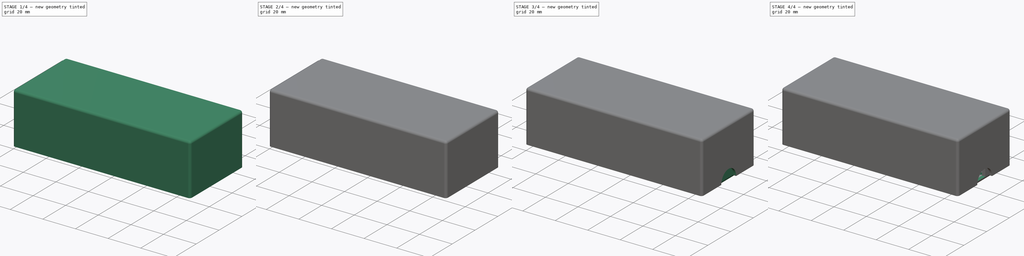
[diagram: build sequence overview — one tinted view per stage of 4, left to right]
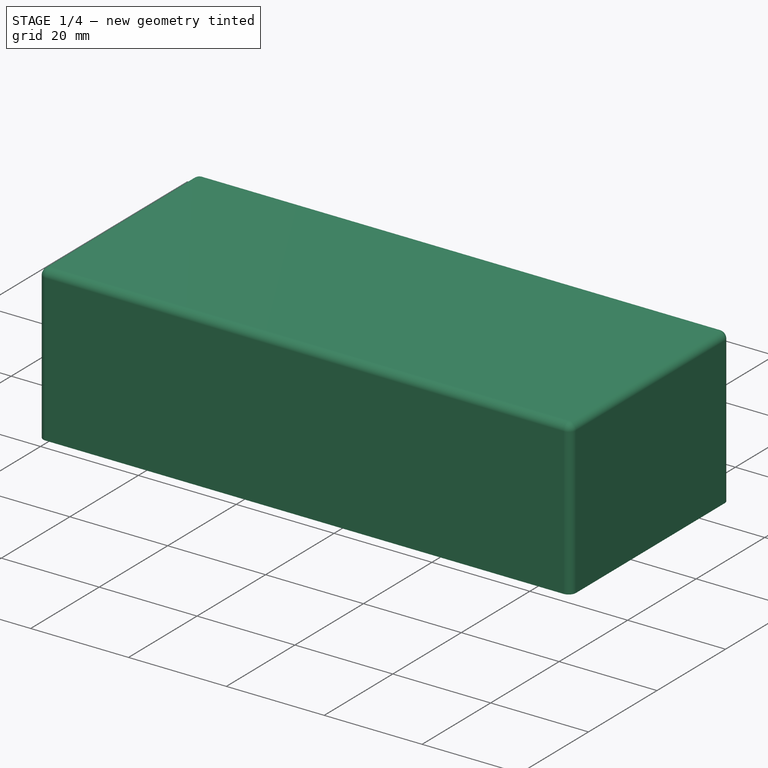
[diagram: stage 1 of 4 — iso view after this stage's code; geometry added in this stage tinted green]
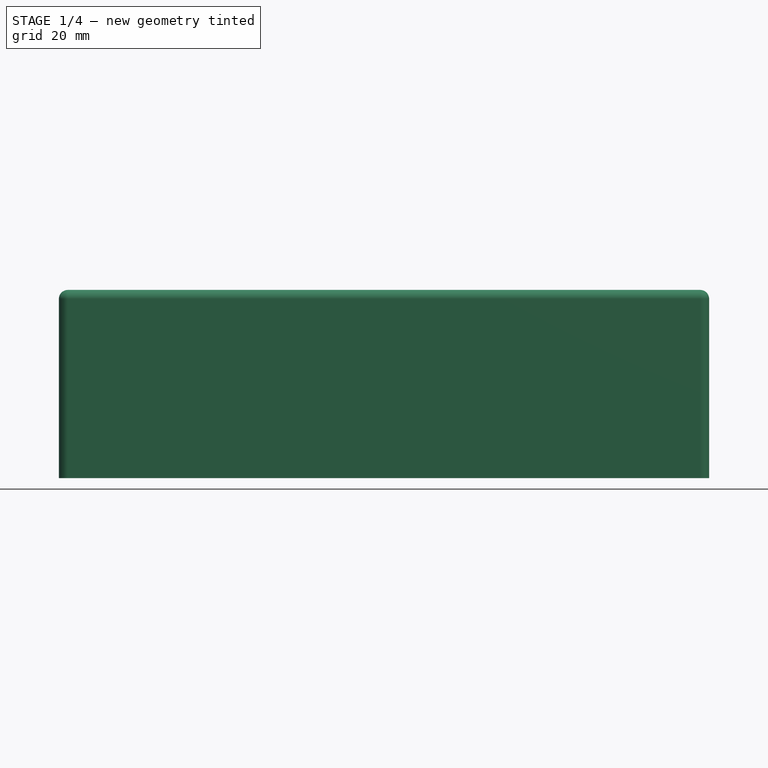
[diagram: stage 1 of 4 — front view after this stage's code; geometry added in this stage tinted green]
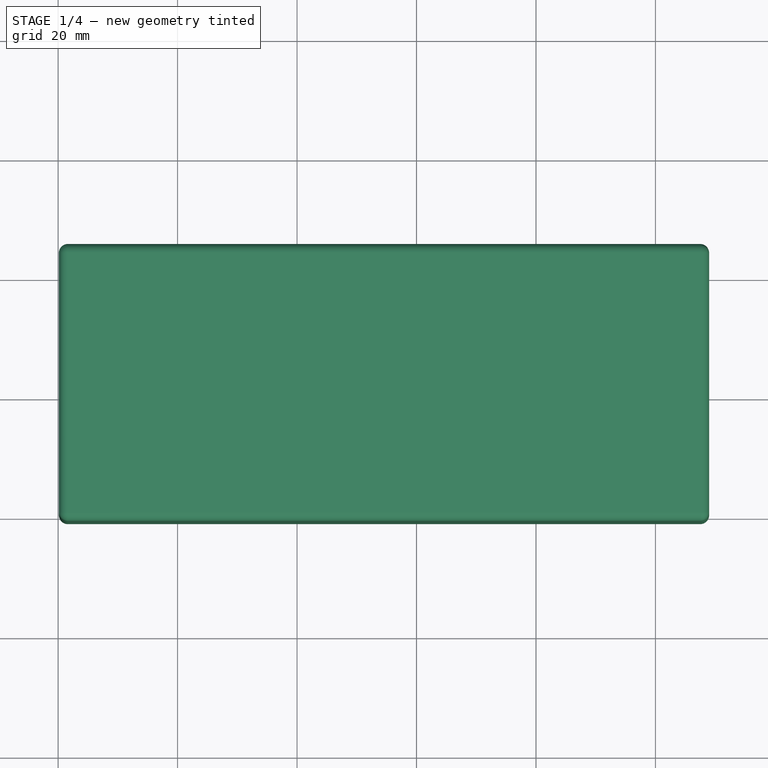
[diagram: stage 1 of 4 — top view after this stage's code; geometry added in this stage tinted green]
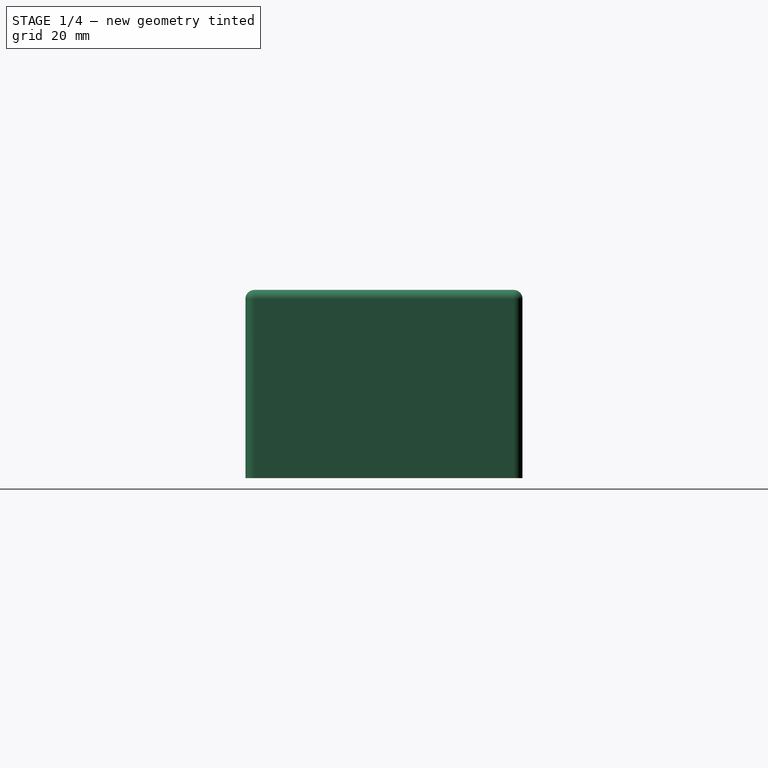
[diagram: stage 1 of 4 — right view after this stage's code; geometry added in this stage tinted green]
FCSTD DOCUMENT  (FreeCAD 0.21R33771 (Git))
Label: enclosure
License: All rights reserved
LicenseURL: http://en.wikipedia.org/wiki/All_rights_reserved
objects: Sketcher::SketchObject×7, PartDesign::Pad×4, PartDesign::Pocket×3, PartDesign::Thickness×2, PartDesign::Body×2, App::Part×1
note: 27 computed .brp shape members not serialized (recipe doc carries the construction recipe); baked Part::Feature solids carry a one-line shape summary decoded from their .brp

FEATURE [PartDesign::Body] Body
  Group = -> [Sketch,Pad,Thickness,Sketch001,Pocket,Sketch002,Pocket001]
  Origin = -> Origin
  Tip = -> Pocket001
FEATURE [App::Part] Part
  Origin = -> Origin001
FEATURE [Sketcher::SketchObject] Sketch003
  FullyConstrained = true
  MapMode = 5
  Support = -> [XY_Plane002]
  sketch-geometry (4):
    g0: LineSegment StartX=-58.3724 StartY=24.0452 StartZ=0 EndX=47.4842 EndY=24.0452 EndZ=0
    g1: LineSegment StartX=47.4842 StartY=24.0452 StartZ=0 EndX=47.4842 EndY=-19.3437 EndZ=0
    g2: LineSegment StartX=47.4842 StartY=-19.3437 StartZ=0 EndX=-58.3724 EndY=-19.3437 EndZ=0
    g3: LineSegment StartX=-58.3724 StartY=-19.3437 StartZ=0 EndX=-58.3724 EndY=24.0452 EndZ=0
  constraints (12):
    c: Coincident(g0,g1)
    c: Coincident(g1,g2)
    c: Coincident(g2,g3)
    c: Coincident(g3,g0)
    c: Horizontal(g0)
    c: Horizontal(g2)
    c: Vertical(g1)
    c: Vertical(g3)
    c: DistanceX(g0) = 47.4842
    c: DistanceY(g0) = 24.0452
    c: DistanceX(g2) = -58.3724
    c: DistanceY(g2) = -19.3437
FEATURE [PartDesign::Pad] Pad001
  Direction = (0,0,1)
  Length = 30
  Length2 = 10
  Profile = -> Sketch003
  ReferenceAxis = -> Sketch003 [N_Axis]
  Refine = true
  Type = 0
FEATURE [PartDesign::Thickness] Thickness001
  Base = -> Pad001 [Face5]
  BaseFeature = -> Pad001
  Intersection = false
  Join = 0
  Mode = 0
  Refine = true
  SupportTransform = false
  Value = 1.5
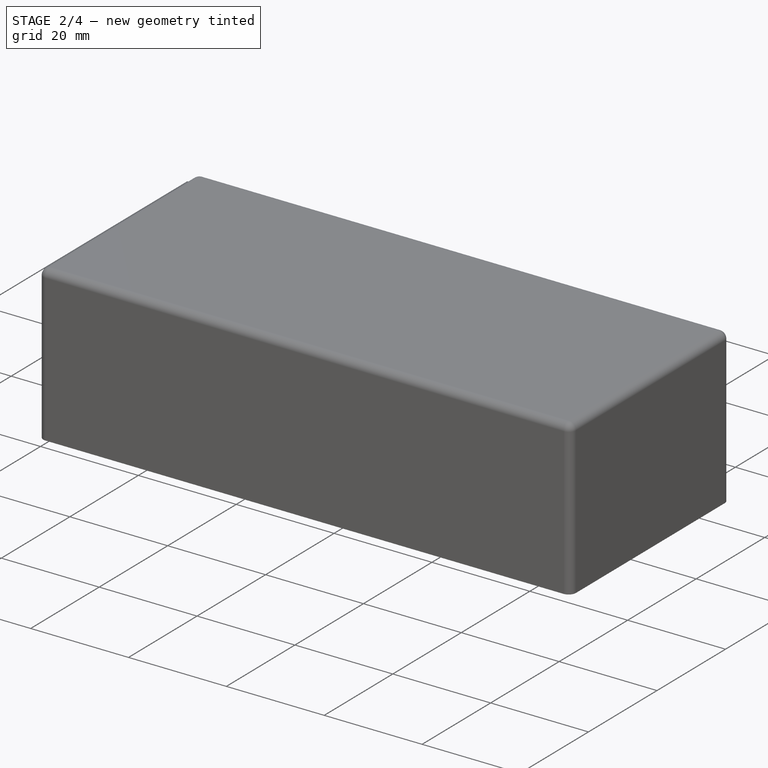
[diagram: stage 2 of 4 — iso view after this stage's code; geometry added in this stage tinted green]
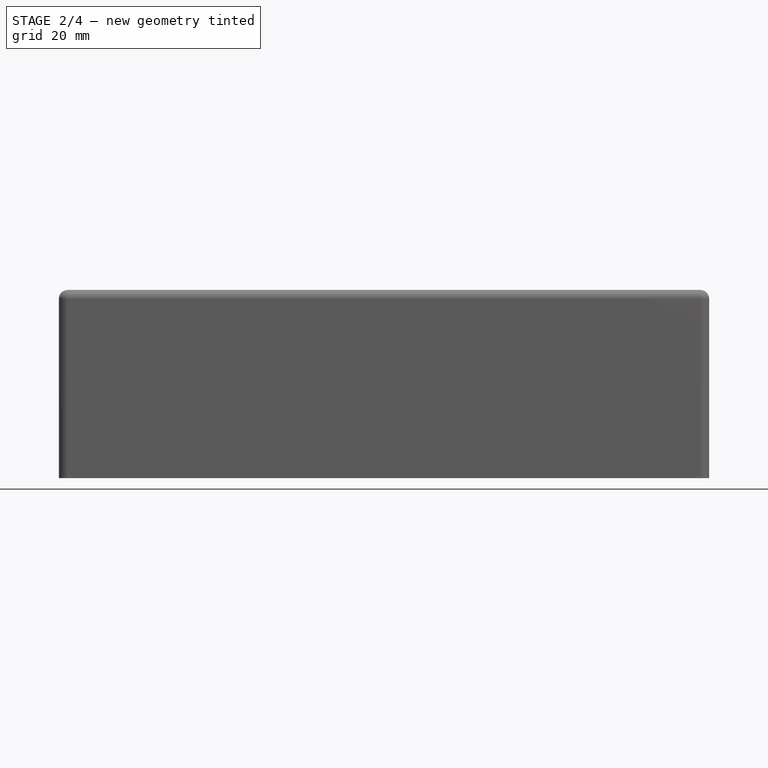
[diagram: stage 2 of 4 — front view after this stage's code; geometry added in this stage tinted green]
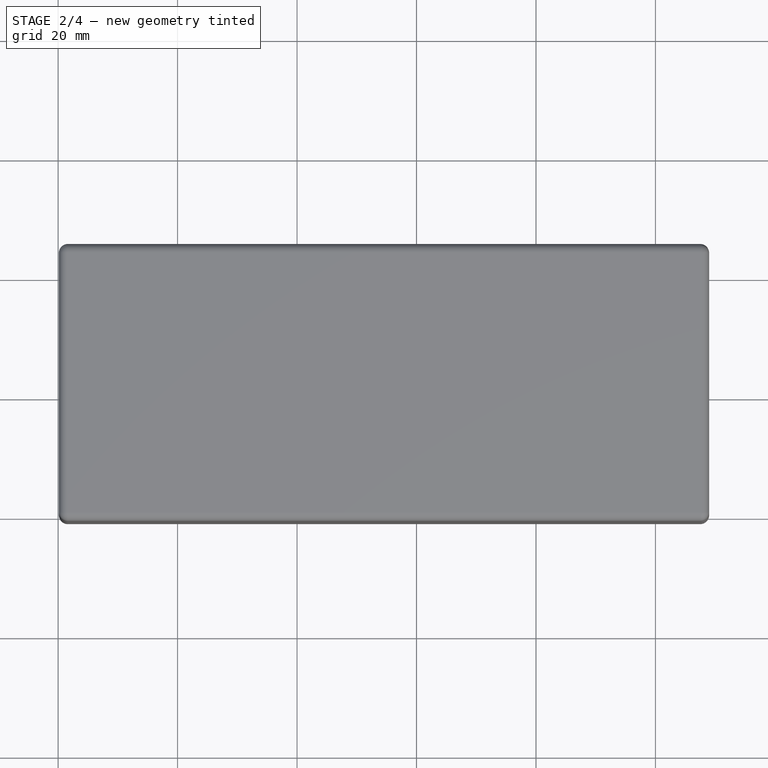
[diagram: stage 2 of 4 — top view after this stage's code; geometry added in this stage tinted green]
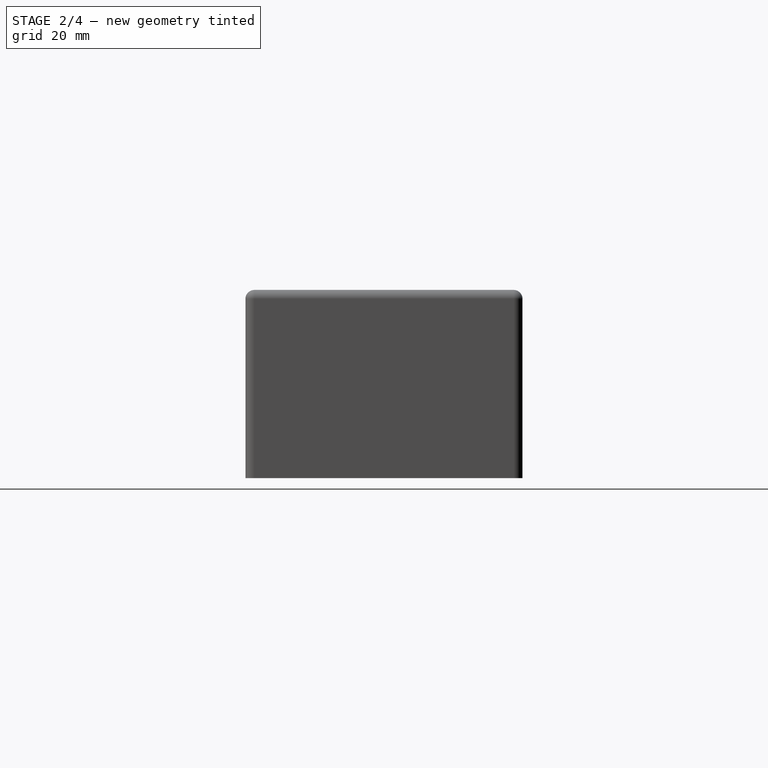
[diagram: stage 2 of 4 — right view after this stage's code; geometry added in this stage tinted green]
FEATURE [Sketcher::SketchObject] Sketch004
  FullyConstrained = true
  MapMode = 5
  Support = -> [XY_Plane002]
  sketch-geometry (8):
    g0: LineSegment StartX=-58.9879 StartY=6.40837 StartZ=0 EndX=-55.4879 EndY=6.40837 EndZ=0
    g1: LineSegment StartX=-55.4879 StartY=6.40837 StartZ=0 EndX=-55.4879 EndY=-1.09163 EndZ=0
    g2: LineSegment StartX=-55.4879 StartY=-1.09163 StartZ=0 EndX=-58.9879 EndY=-1.09163 EndZ=0
    g3: LineSegment StartX=-58.9879 StartY=-1.09163 StartZ=0 EndX=-58.9879 EndY=6.40837 EndZ=0
    g4: LineSegment StartX=44.3984 StartY=6.41171 StartZ=0 EndX=47.8984 EndY=6.41171 EndZ=0
    g5: LineSegment StartX=47.8984 StartY=6.41171 StartZ=0 EndX=47.8984 EndY=-1.08829 EndZ=0
    g6: LineSegment StartX=47.8984 StartY=-1.08829 StartZ=0 EndX=44.3984 EndY=-1.08829 EndZ=0
    g7: LineSegment StartX=44.3984 StartY=-1.08829 StartZ=0 EndX=44.3984 EndY=6.41171 EndZ=0
  constraints (24):
    c: Coincident(g0,g1)
    c: Coincident(g1,g2)
    c: Coincident(g2,g3)
    c: Coincident(g3,g0)
    c: Horizontal(g0)
    c: Horizontal(g2)
    c: Vertical(g1)
    c: Vertical(g3)
    c: DistanceY(g3,g3) = 7.5
    c: Coincident(g4,g5)
    c: Coincident(g5,g6)
    c: Coincident(g6,g7)
    c: Coincident(g7,g4)
    c: Horizontal(g4)
    c: Horizontal(g6)
    c: Vertical(g5)
    c: Vertical(g7)
    c: DistanceY(g5,g5) = 7.5
    c: DistanceX(g4) = 44.3984
    c: DistanceY(g4) = 6.41171
    c: DistanceX(g6,g6) = 3.5
    c: DistanceX(g2,g2) = 3.5
    c: DistanceX(g2) = -58.9879
    c: DistanceY(g2) = -1.09163
FEATURE [PartDesign::Pad] Pad002
  BaseFeature = -> Thickness001
  Direction = (0,0,1)
  Length = 30
  Length2 = 10
  Profile = -> Sketch004
  ReferenceAxis = -> Sketch004 [N_Axis]
  Refine = true
  Type = 0
FEATURE [Sketcher::SketchObject] Sketch005
  FullyConstrained = true
  MapMode = 5
  Placement = pos=(0,0,30) rot=(1,0,0;3.14159rad)
  Support = -> [Pad002]
  sketch-geometry (16):
    g0: LineSegment StartX=14.8561 StartY=19.916 StartZ=0 EndX=-30.1439 EndY=19.916 EndZ=0
    g1: LineSegment StartX=-30.1439 StartY=19.916 StartZ=0 EndX=-30.1439 EndY=16.916 EndZ=0
    g2: LineSegment StartX=-30.1439 StartY=16.916 StartZ=0 EndX=14.8561 EndY=16.916 EndZ=0
    g3: LineSegment StartX=14.8561 StartY=16.916 StartZ=0 EndX=14.8561 EndY=19.916 EndZ=0
    g4: LineSegment StartX=-29.0784 StartY=-24.8776 StartZ=0 EndX=15.9216 EndY=-24.8776 EndZ=0
    g5: LineSegment StartX=15.9216 StartY=-24.8776 StartZ=0 EndX=15.9216 EndY=-21.8776 EndZ=0
    g6: LineSegment StartX=15.9216 StartY=-21.8776 StartZ=0 EndX=-29.0784 EndY=-21.8776 EndZ=0
    g7: LineSegment StartX=-29.0784 StartY=-21.8776 StartZ=0 EndX=-29.0784 EndY=-24.8776 EndZ=0
    g8: LineSegment StartX=-59.4548 StartY=7.79679 StartZ=0 EndX=-55.4548 EndY=7.79679 EndZ=0
    g9: LineSegment StartX=-55.4548 StartY=7.79679 StartZ=0 EndX=-55.4548 EndY=-12.2032 EndZ=0
    g10: LineSegment StartX=-55.4548 StartY=-12.2032 StartZ=0 EndX=-59.4548 EndY=-12.2032 EndZ=0
    g11: LineSegment StartX=-59.4548 StartY=-12.2032 StartZ=0 EndX=-59.4548 EndY=7.79679 EndZ=0
    g12: LineSegment StartX=44.1969 StartY=7.43163 StartZ=0 EndX=48.1969 EndY=7.43163 EndZ=0
    g13: LineSegment StartX=48.1969 StartY=7.43163 StartZ=0 EndX=48.1969 EndY=-12.5684 EndZ=0
    g14: LineSegment StartX=48.1969 StartY=-12.5684 StartZ=0 EndX=44.1969 EndY=-12.5684 EndZ=0
    g15: LineSegment StartX=44.1969 StartY=-12.5684 StartZ=0 EndX=44.1969 EndY=7.43163 EndZ=0
  constraints (48):
    c: Coincident(g0,g1)
    c: Coincident(g1,g2)
    c: Coincident(g2,g3)
    c: Coincident(g3,g0)
    c: Horizontal(g0)
    c: Horizontal(g2)
    c: Vertical(g1)
    c: Vertical(g3)
    c: Coincident(g4,g5)
    c: Coincident(g5,g6)
    c: Coincident(g6,g7)
    c: Coincident(g7,g4)
    c: Horizontal(g4)
    c: Horizontal(g6)
    c: Vertical(g5)
    c: Vertical(g7)
    c: DistanceX(g2,g2) = 45
    c: DistanceX(g6,g6) = 45
    c: DistanceY(g1,g1) = 3
    c: DistanceY(g7,g7) = 3
    c: Coincident(g8,g9)
    c: Coincident(g9,g10)
    c: Coincident(g10,g11)
    c: Coincident(g11,g8)
    c: Horizontal(g8)
    c: Horizontal(g10)
    c: Vertical(g9)
    c: Vertical(g11)
    c: Coincident(g12,g13)
    c: Coincident(g13,g14)
    c: Coincident(g14,g15)
    c: Coincident(g15,g12)
    c: Horizontal(g12)
    c: Horizontal(g14)
    c: Vertical(g13)
    c: Vertical(g15)
    c: DistanceX(g12,g12) = 4
    c: DistanceY(g15,g15) = 20
    c: DistanceX(g2) = 14.8561
    c: DistanceY(g2) = 16.916
    c: DistanceX(g14) = 44.1969
    c: DistanceY(g14) = -12.5684
    c: DistanceX(g5) = 15.9216
    c: DistanceY(g5) = -21.8776
    c: DistanceX(g8,g8) = 4
    c: DistanceY(g9,g9) = 20
    c: DistanceX(g9) = -55.4548
    c: DistanceY(g9) = -12.2032
FEATURE [PartDesign::Pad] Pad003
  BaseFeature = -> Pad002
  Direction = (0,0,-1)
  Length = 15
  Length2 = 10
  Profile = -> Sketch005
  ReferenceAxis = -> Sketch005 [N_Axis]
  Refine = true
  Type = 0
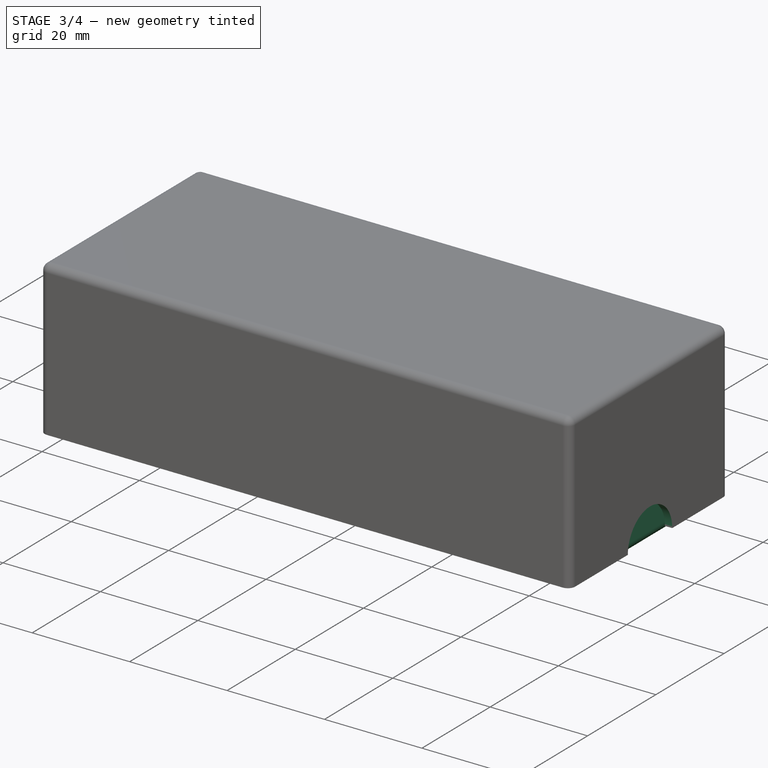
[diagram: stage 3 of 4 — iso view after this stage's code; geometry added in this stage tinted green]
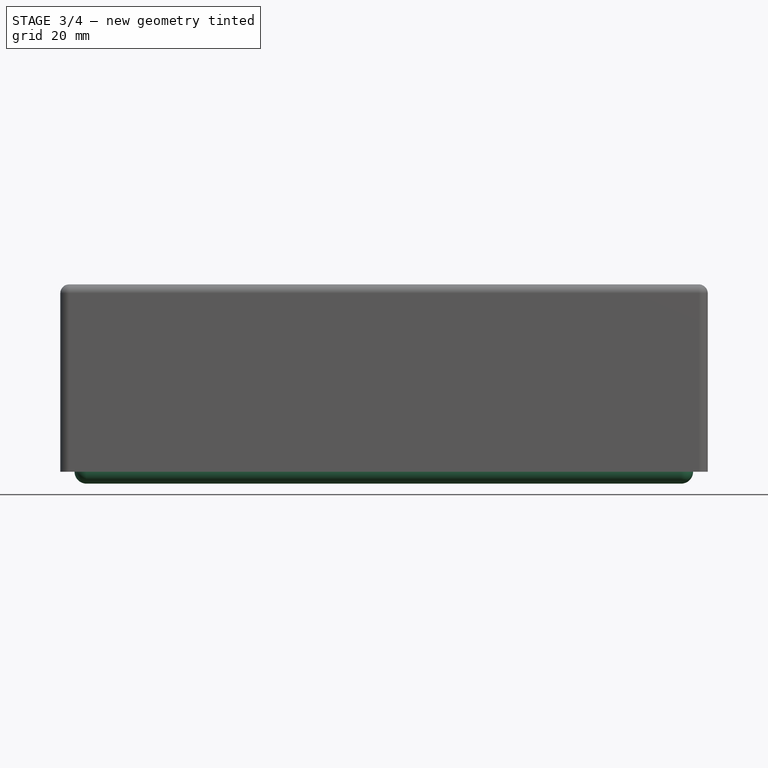
[diagram: stage 3 of 4 — front view after this stage's code; geometry added in this stage tinted green]
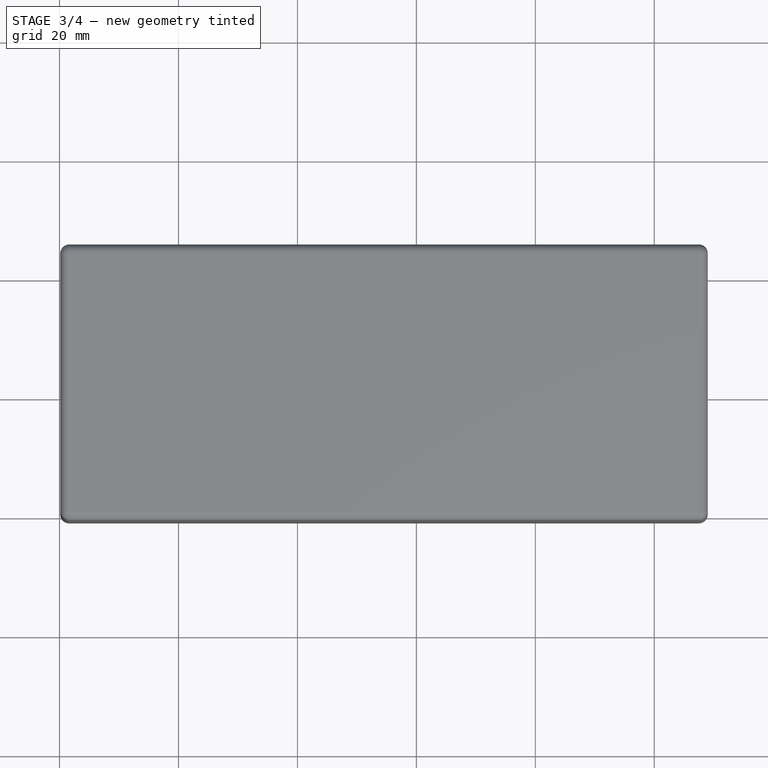
[diagram: stage 3 of 4 — top view after this stage's code; geometry added in this stage tinted green]
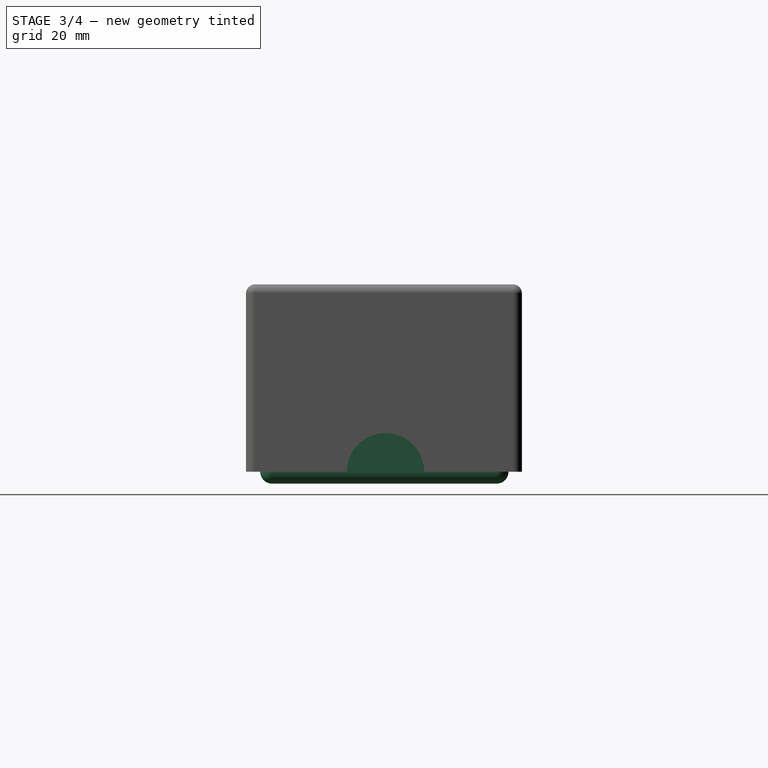
[diagram: stage 3 of 4 — right view after this stage's code; geometry added in this stage tinted green]
FEATURE [Sketcher::SketchObject] Sketch
  FullyConstrained = true
  MapMode = 5
  Support = -> [XY_Plane]
  sketch-geometry (12):
    g0: LineSegment StartX=-52.407 StartY=18.3648 StartZ=0 EndX=-16.407 EndY=18.3648 EndZ=0
    g1: LineSegment StartX=-16.407 StartY=18.3648 StartZ=0 EndX=-16.407 EndY=-13.6352 EndZ=0
    g2: LineSegment StartX=-16.407 StartY=-13.6352 StartZ=0 EndX=-52.407 EndY=-13.6352 EndZ=0
    g3: LineSegment StartX=-52.407 StartY=-13.6352 StartZ=0 EndX=-52.407 EndY=18.3648 EndZ=0
    g4: LineSegment StartX=-7.3284 StartY=12.4323 StartZ=0 EndX=43.6716 EndY=12.4323 EndZ=0
    g5: LineSegment StartX=43.6716 StartY=12.4323 StartZ=0 EndX=43.6716 EndY=-8.56773 EndZ=0
    g6: LineSegment StartX=43.6716 StartY=-8.56773 StartZ=0 EndX=-7.3284 EndY=-8.56773 EndZ=0
    g7: LineSegment StartX=-7.3284 StartY=-8.56773 StartZ=0 EndX=-7.3284 EndY=12.4323 EndZ=0
    g8: LineSegment StartX=-55.4763 StartY=21.2908 StartZ=0 EndX=44.5237 EndY=21.2908 EndZ=0
    g9: LineSegment StartX=44.5237 StartY=21.2908 StartZ=0 EndX=44.5237 EndY=-16.4592 EndZ=0
    g10: LineSegment StartX=44.5237 StartY=-16.4592 StartZ=0 EndX=-55.4763 EndY=-16.4592 EndZ=0
    g11: LineSegment StartX=-55.4763 StartY=-16.4592 StartZ=0 EndX=-55.4763 EndY=21.2908 EndZ=0
  constraints (36):
    c: Coincident(g0,g1)
    c: Coincident(g1,g2)
    c: Coincident(g2,g3)
    c: Coincident(g3,g0)
    c: Horizontal(g0)
    c: Horizontal(g2)
    c: Vertical(g1)
    c: Vertical(g3)
    c: DistanceX(g0,g0) = 36
    c: DistanceY(g1,g1) = 32
    c: Coincident(g4,g5)
    c: Coincident(g5,g6)
    c: Coincident(g6,g7)
    c: Coincident(g7,g4)
    c: Horizontal(g4)
    c: Horizontal(g6)
    c: Vertical(g5)
    c: Vertical(g7)
    c: DistanceY(g5,g5) = 21
    c: DistanceX(g4,g4) = 51
    c: DistanceX(g6) = -7.3284
    c: DistanceY(g6) = -8.56773
    c: DistanceX(g1) = -16.407
    c: DistanceY(g1) = -13.6352
    c: Coincident(g8,g9)
    c: Coincident(g9,g10)
    c: Coincident(g10,g11)
    c: Coincident(g11,g8)
    c: Horizontal(g8)
    c: Horizontal(g10)
    c: Vertical(g9)
    c: Vertical(g11)
    c: DistanceX(g8,g8) = 100
    c: DistanceY(g11,g11) = 37.75
    c: DistanceX(g8) = -55.4763
    c: DistanceY(g8) = 21.2908
FEATURE [PartDesign::Pad] Pad
  Direction = (0,0,1)
  Length = 20
  Length2 = 10
  Profile = -> Sketch
  ReferenceAxis = -> Sketch [N_Axis]
  Refine = true
  Type = 0
FEATURE [PartDesign::Thickness] Thickness
  Base = -> Pad [Face6]
  BaseFeature = -> Pad
  Intersection = false
  Join = 0
  Mode = 0
  Refine = true
  SupportTransform = false
  Value = 2
  expr: Value = 2
FEATURE [Sketcher::SketchObject] Sketch006
  FullyConstrained = true
  MapMode = 5
  Placement = pos=(-59.8724,0,0) rot=(0.57735,-0.57735,-0.57735;2.0944rad)
  Support = -> [Pad003]
  sketch-geometry (1):
    g0: Circle CenterX=-2.6 CenterY=0 CenterZ=0 NormalX=0 NormalY=0 NormalZ=1 AngleXU=0 Radius=6.5
  constraints (3):
    c: PointOnObject(g0,g-1)
    c: Diameter(g0) = 13
    c: DistanceX(g0,g-1) = 2.6
FEATURE [PartDesign::Pocket] Pocket002
  BaseFeature = -> Pad003
  Direction = (1,0,0)
  Length = 200
  Length2 = 5
  Profile = -> Sketch006
  ReferenceAxis = -> Sketch006 [N_Axis]
  Refine = true
  Type = 0
FEATURE [PartDesign::Body] Body001  label="lid"
  Group = -> [Sketch003,Pad001,Thickness001,Sketch004,Pad002,Sketch005,Pad003,Sketch006,Pocket002]
  Origin = -> Origin002
  Tip = -> Pocket002
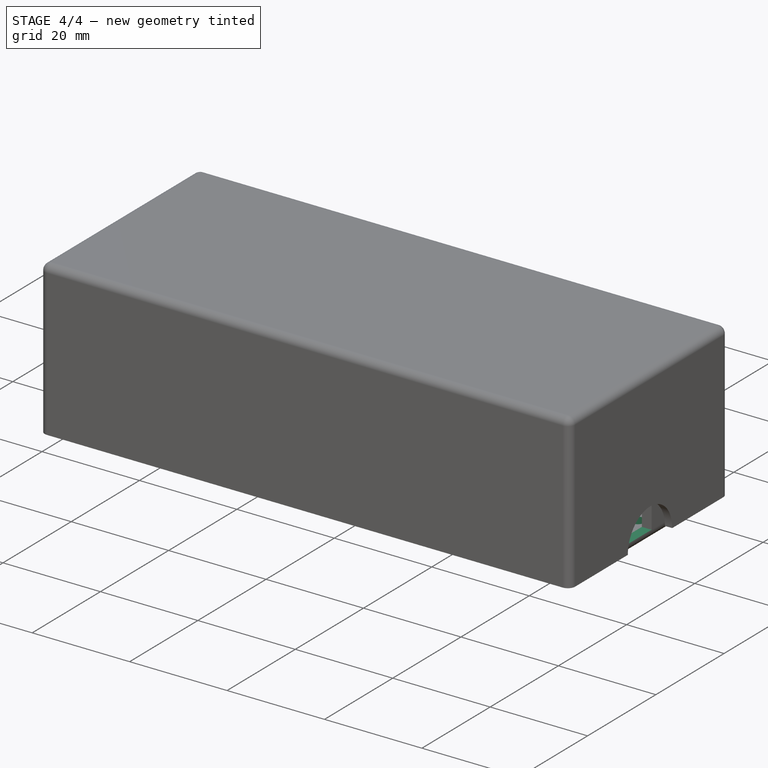
[diagram: stage 4 of 4 — iso view after this stage's code; geometry added in this stage tinted green]
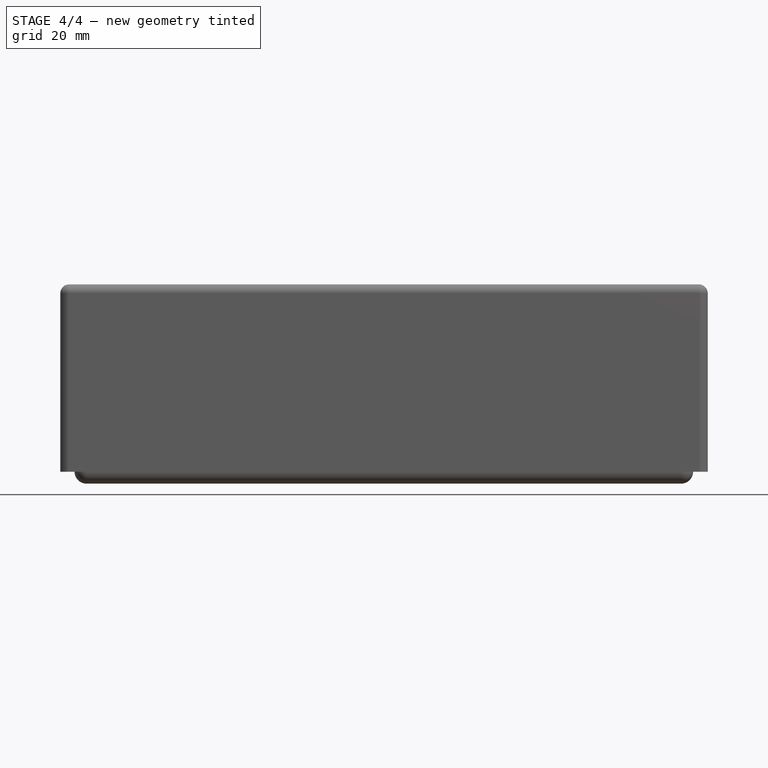
[diagram: stage 4 of 4 — front view after this stage's code; geometry added in this stage tinted green]
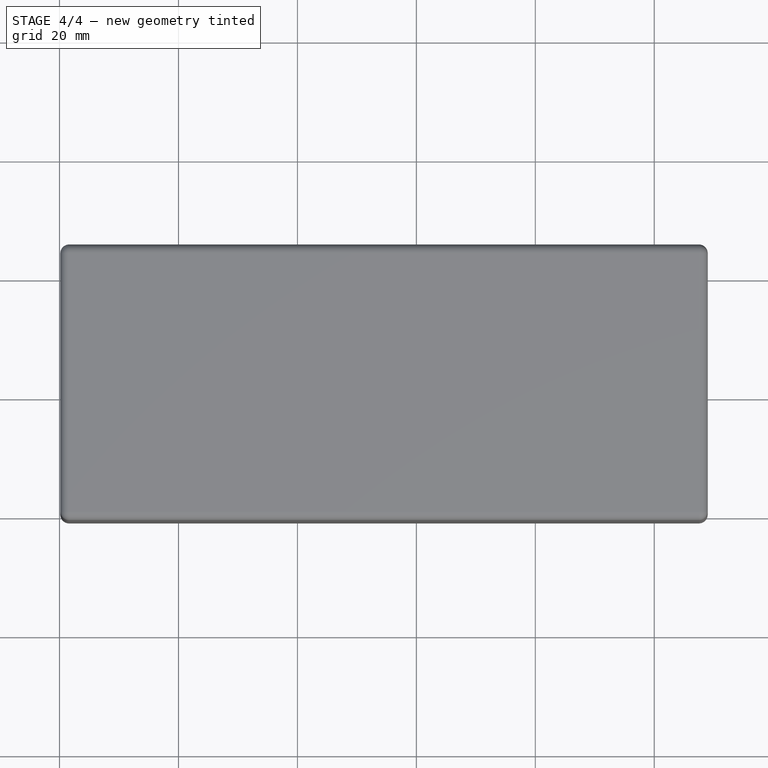
[diagram: stage 4 of 4 — top view after this stage's code; geometry added in this stage tinted green]
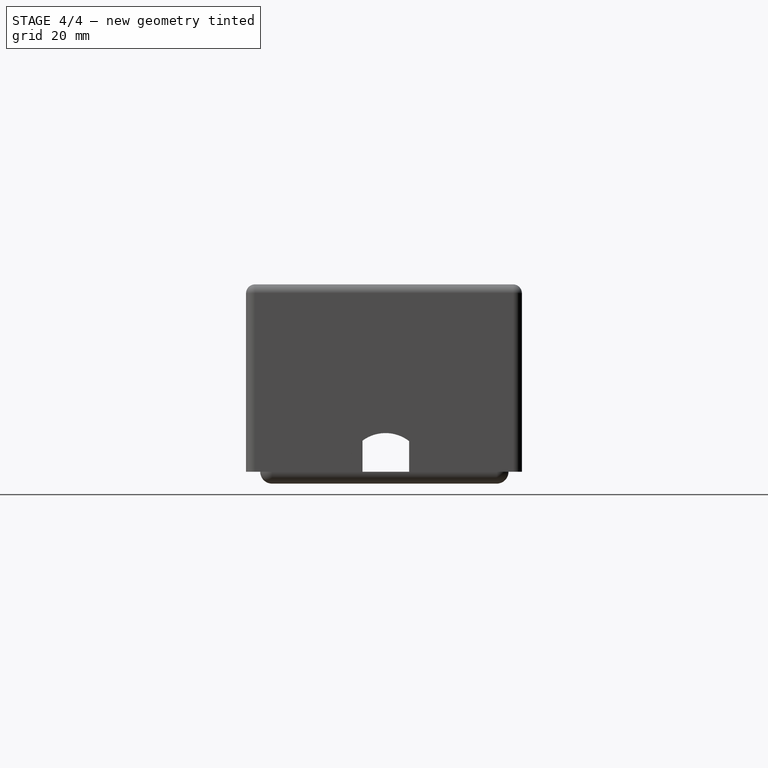
[diagram: stage 4 of 4 — right view after this stage's code; geometry added in this stage tinted green]
FEATURE [Sketcher::SketchObject] Sketch001
  FullyConstrained = true
  MapMode = 5
  Support = -> [Thickness]
  expr: Constraints[18] = Sketch.Constraints[18]
  expr: Constraints[19] = Sketch.Constraints[19]
  expr: Constraints[20] = Sketch.Constraints[20]
  expr: Constraints[21] = Sketch.Constraints[21]
  expr: Constraints[22] = Sketch.Constraints[22]
  expr: Constraints[23] = Sketch.Constraints[23]
  expr: Constraints[8] = Sketch.Constraints[8]
  expr: Constraints[9] = Sketch.Constraints[9]
  sketch-geometry (24):
    g0: LineSegment StartX=-52.407 StartY=18.3648 StartZ=0 EndX=-16.407 EndY=18.3648 EndZ=0
    g1: LineSegment StartX=-16.407 StartY=18.3648 StartZ=0 EndX=-16.407 EndY=-13.6352 EndZ=0
    g2: LineSegment StartX=-16.407 StartY=-13.6352 StartZ=0 EndX=-52.407 EndY=-13.6352 EndZ=0
    g3: LineSegment StartX=-52.407 StartY=-13.6352 StartZ=0 EndX=-52.407 EndY=18.3648 EndZ=0
    g4: LineSegment StartX=-7.3284 StartY=12.4323 StartZ=0 EndX=43.6716 EndY=12.4323 EndZ=0
    g5: LineSegment StartX=43.6716 StartY=12.4323 StartZ=0 EndX=43.6716 EndY=-8.56773 EndZ=0
    g6: LineSegment StartX=43.6716 StartY=-8.56773 StartZ=0 EndX=-7.3284 EndY=-8.56773 EndZ=0
    g7: LineSegment StartX=-7.3284 StartY=-8.56773 StartZ=0 EndX=-7.3284 EndY=12.4323 EndZ=0
    g8: LineSegment StartX=-45.3 StartY=15 StartZ=0 EndX=-15 EndY=15 EndZ=0
    g9: LineSegment StartX=-15 StartY=15 StartZ=0 EndX=-15 EndY=-11.7 EndZ=0
    g10: LineSegment StartX=-15 StartY=-11.7 StartZ=0 EndX=-45.3 EndY=-11.7 EndZ=0
    g11: LineSegment StartX=-45.3 StartY=-11.7 StartZ=0 EndX=-45.3 EndY=15 EndZ=0
    g12: LineSegment StartX=-4.5 StartY=8.2622 StartZ=0 EndX=42.5 EndY=8.2622 EndZ=0
    g13: LineSegment StartX=42.5 StartY=8.2622 StartZ=0 EndX=42.5 EndY=-3.1378 EndZ=0
    g14: LineSegment StartX=42.5 StartY=-3.1378 StartZ=0 EndX=-4.5 EndY=-3.1378 EndZ=0
    g15: LineSegment StartX=-4.5 StartY=-3.1378 StartZ=0 EndX=-4.5 EndY=8.2622 EndZ=0
    g16: Circle CenterX=-45.3 CenterY=15 CenterZ=0 NormalX=0 NormalY=0 NormalZ=1 AngleXU=0 Radius=1.5
    g17: Circle CenterX=-15 CenterY=15 CenterZ=0 NormalX=0 NormalY=0 NormalZ=1 AngleXU=0 Radius=1.5
    g18: Circle CenterX=-15 CenterY=-11.7 CenterZ=0 NormalX=0 NormalY=0 NormalZ=1 AngleXU=0 Radius=1.5
    g19: Circle CenterX=-45.3 CenterY=-11.7 CenterZ=0 NormalX=0 NormalY=0 NormalZ=1 AngleXU=0 Radius=1.5
    g20: Circle CenterX=-4.5 CenterY=8.2622 CenterZ=0 NormalX=0 NormalY=0 NormalZ=1 AngleXU=0 Radius=1.5
    g21: Circle CenterX=42.5 CenterY=8.2622 CenterZ=0 NormalX=0 NormalY=0 NormalZ=1 AngleXU=0 Radius=1.5
    g22: Circle CenterX=42.5 CenterY=-3.1378 CenterZ=0 NormalX=0 NormalY=0 NormalZ=1 AngleXU=0 Radius=1.5
    g23: Circle CenterX=-4.5 CenterY=-3.1378 CenterZ=0 NormalX=0 NormalY=0 NormalZ=1 AngleXU=0 Radius=1.5
  constraints (64):
    c: Coincident(g0,g1)
    c: Coincident(g1,g2)
    c: Coincident(g2,g3)
    c: Coincident(g3,g0)
    c: Horizontal(g0)
    c: Horizontal(g2)
    c: Vertical(g1)
    c: Vertical(g3)
    c: DistanceX(g0,g0) = 36
    c: DistanceY(g1,g1) = 32
    c: Coincident(g4,g5)
    c: Coincident(g5,g6)
    c: Coincident(g6,g7)
    c: Coincident(g7,g4)
    c: Horizontal(g4)
    c: Horizontal(g6)
    c: Vertical(g5)
    c: Vertical(g7)
    c: DistanceY(g5,g5) = 21
    c: DistanceX(g4,g4) = 51
    c: DistanceX(g6) = -7.3284
    c: DistanceY(g6) = -8.56773
    c: DistanceX(g1) = -16.407
    c: DistanceY(g1) = -13.6352
    c: Coincident(g8,g9)
    c: Coincident(g9,g10)
    c: Coincident(g10,g11)
    c: Coincident(g11,g8)
    c: Horizontal(g8)
    c: Horizontal(g10)
    c: Vertical(g9)
    c: Vertical(g11)
    c: Coincident(g12,g13)
    c: Coincident(g13,g14)
    c: Coincident(g14,g15)
    c: Coincident(g15,g12)
    c: Horizontal(g12)
    c: Horizontal(g14)
    c: Vertical(g13)
    c: Vertical(g15)
    c: Coincident(g16,g8)
    c: Coincident(g17,g8)
    c: Coincident(g18,g9)
    c: Coincident(g19,g10)
    c: Coincident(g20,g12)
    c: Coincident(g21,g12)
    c: Coincident(g22,g13)
    c: Coincident(g23,g14)
    c: Equal(g16,g17)
    c: Equal(g17,g19)
    c: Equal(g19,g18)
    c: Equal(g18,g20)
    c: Equal(g20,g21)
    c: Equal(g21,g23)
    c: Equal(g23,g22)
    c: Diameter(g16) = 3
    c: DistanceX(g8,g8) = 30.3
    c: DistanceY(g11,g11) = 26.7
    c: DistanceY(g13,g13) = 11.4
    c: DistanceX(g17) = -15
    c: DistanceY(g17) = 15
    c: DistanceX(g20) = -4.5
    c: DistanceY(g20) = 8.2622
    c: DistanceX(g12,g12) = 47
FEATURE [PartDesign::Pocket] Pocket
  BaseFeature = -> Thickness
  Direction = (0,0,-1)
  Length = 5
  Length2 = 5
  Profile = -> Sketch001
  ReferenceAxis = -> Sketch001 [N_Axis]
  Refine = true
  Type = 0
FEATURE [Sketcher::SketchObject] Sketch002
  FullyConstrained = true
  MapMode = 5
  Support = -> [Pocket]
  sketch-geometry (4):
    g0: LineSegment StartX=-67.8463 StartY=6.56593 StartZ=0 EndX=56.1737 EndY=6.56593 EndZ=0
    g1: LineSegment StartX=56.1737 StartY=6.56593 StartZ=0 EndX=56.1737 EndY=-1.26407 EndZ=0
    g2: LineSegment StartX=56.1737 StartY=-1.26407 StartZ=0 EndX=-67.8463 EndY=-1.26407 EndZ=0
    g3: LineSegment StartX=-67.8463 StartY=-1.26407 StartZ=0 EndX=-67.8463 EndY=6.56593 EndZ=0
  constraints (12):
    c: Coincident(g0,g1)
    c: Coincident(g1,g2)
    c: Coincident(g2,g3)
    c: Coincident(g3,g0)
    c: Horizontal(g0)
    c: Horizontal(g2)
    c: Vertical(g1)
    c: Vertical(g3)
    c: DistanceX(g0,g0) = 124.02
    c: DistanceY(g1,g1) = 7.83
    c: DistanceX(g2) = -67.8463
    c: DistanceY(g2) = -1.26407
FEATURE [PartDesign::Pocket] Pocket001
  BaseFeature = -> Pocket
  Direction = (0,0,-1)
  Length = 20
  Length2 = 5
  Profile = -> Sketch002
  ReferenceAxis = -> Sketch002 [N_Axis]
  Refine = true
  Reversed = true
  Type = 0
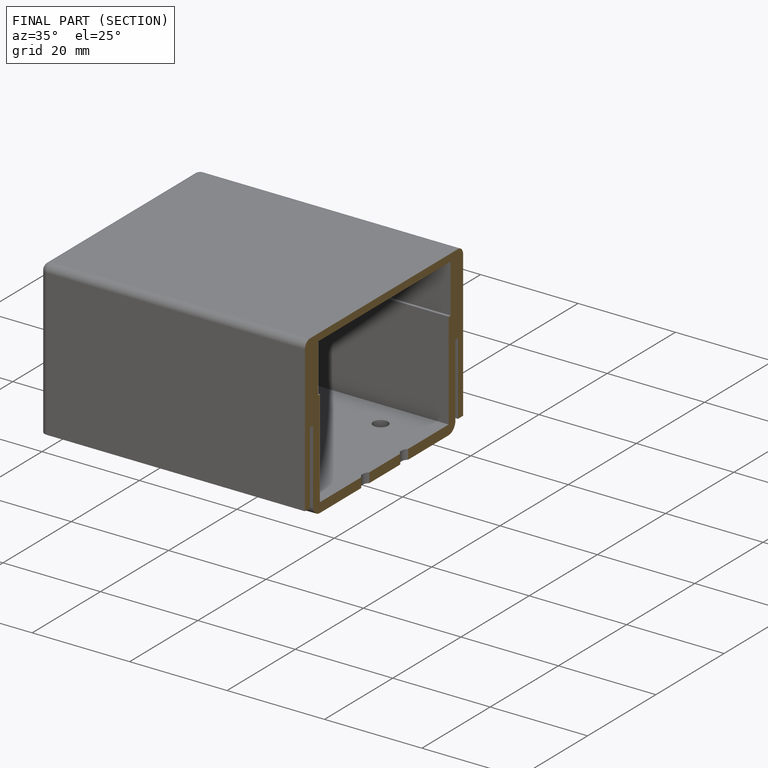
[diagram: finished part — half-section view (interior)]
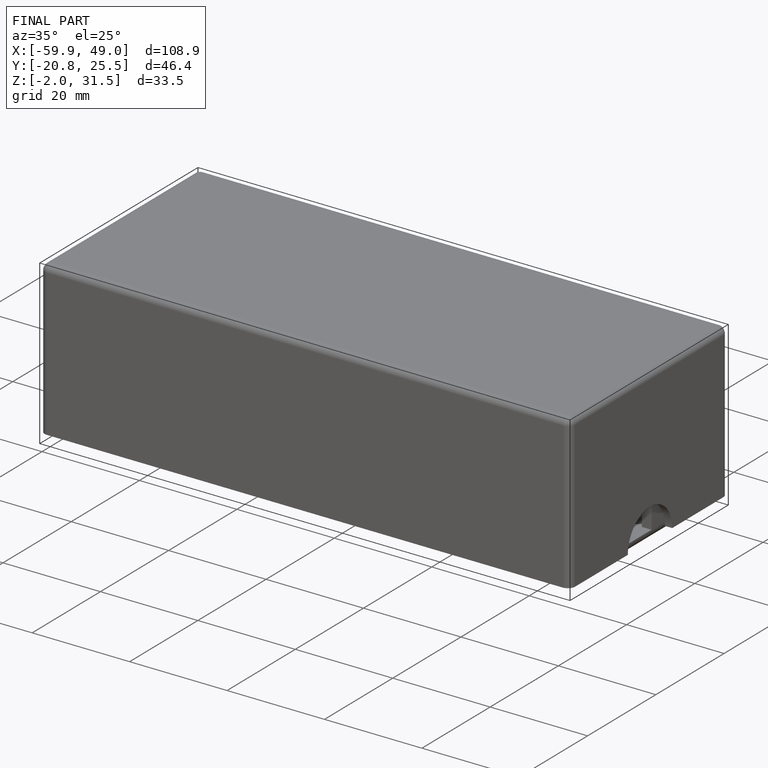
[diagram: finished part — iso view with bounding-box wireframe]
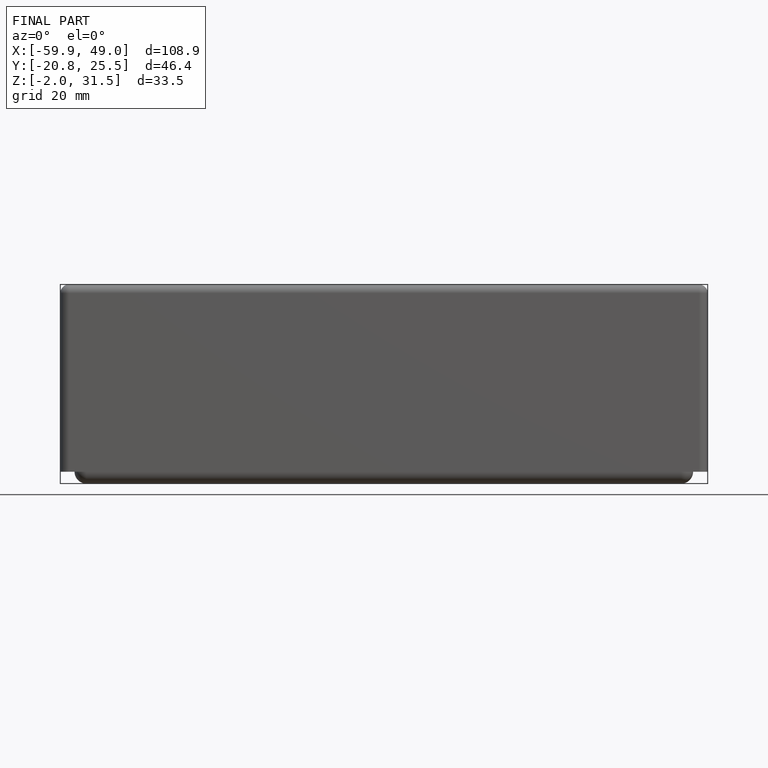
[diagram: finished part — front view with bounding-box wireframe]
